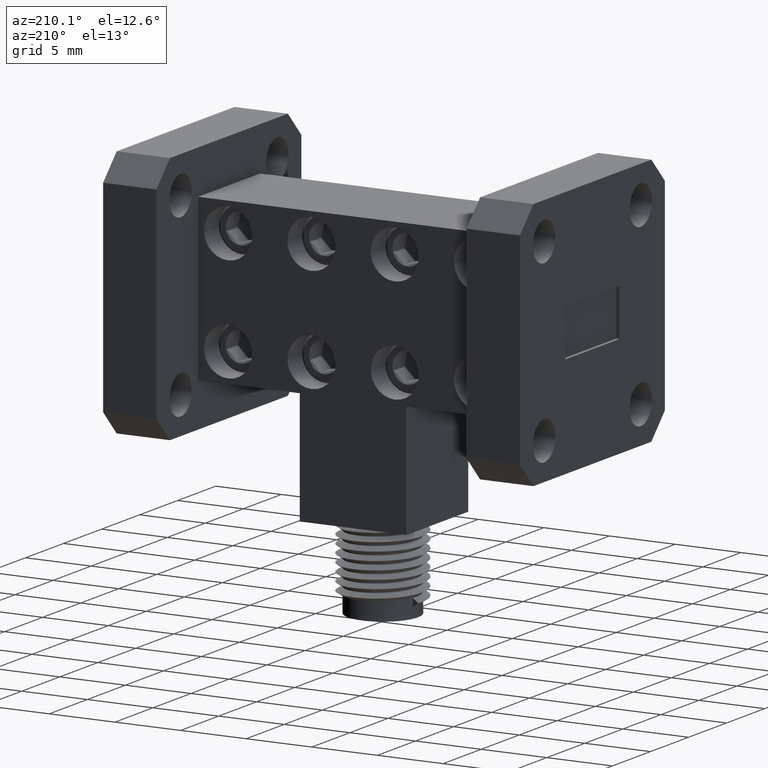
[diagram: clean part render]
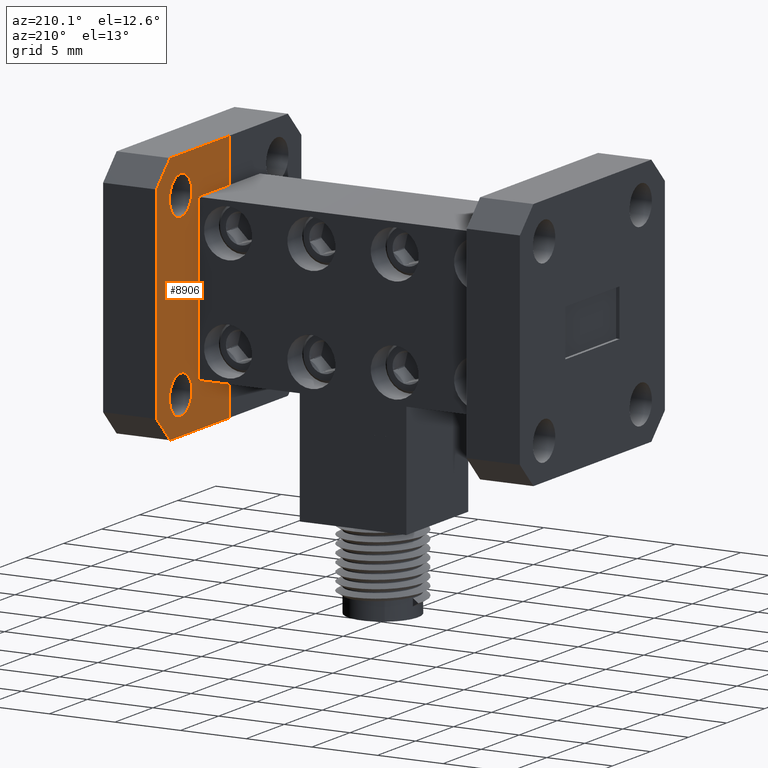
[diagram: same view with one face highlighted and labeled with its STEP entity id]
A machine part, auxiliary view. The second image highlights one B-rep face of the part: STEP entity #8906.
In plain terms, the highlighted planar face has unit normal (1, 0, 0).
Its self-contained STEP definition (entity closure, byte-faithful):
#18 = CARTESIAN_POINT ( 'NONE',  ( 0.4506356526792962300, 0.2073681026864123400, -0.2535334925322735900 ) ) ;
#160 = LINE ( 'NONE', #3188, #11014 ) ;
#216 = VERTEX_POINT ( 'NONE', #437 ) ;
#301 = VECTOR ( 'NONE', #4131, 39.37007874015748100 ) ;
#365 = DIRECTION ( 'NONE',  ( -7.850462293418889400E-017, 0.7071067811865489100, -0.7071067811865460200 ) ) ;
#437 = CARTESIAN_POINT ( 'NONE',  ( 0.4506356526792961200, 0.2073681026864123400, -0.1225334925322735900 ) ) ;
#518 = VERTEX_POINT ( 'NONE', #6326 ) ;
#731 = ORIENTED_EDGE ( 'NONE', *, *, #5749, .F. ) ;
#749 = CARTESIAN_POINT ( 'NONE',  ( 0.4506356526792963400, 0.3673681026864124000, 0.3654665074677268000 ) ) ;
#789 = EDGE_CURVE ( 'NONE', #8961, #873, #11409, .T. ) ;
#814 = CARTESIAN_POINT ( 'NONE',  ( 0.4506356526792961200, 0.4573681026864124300, 0.3284665074677265400 ) ) ;
#873 = VERTEX_POINT ( 'NONE', #11297 ) ;
#933 = DIRECTION ( 'NONE',  ( 0.0000000000000000000, 0.0000000000000000000, -1.000000000000000000 ) ) ;
#935 = DIRECTION ( 'NONE',  ( 7.850462293418891900E-017, -0.7071067811865491300, -0.7071067811865459100 ) ) ;
#1040 = CARTESIAN_POINT ( 'NONE',  ( 0.4506356526792963400, 0.3673681026864124000, -0.1225334925322735900 ) ) ;
#1269 = ORIENTED_EDGE ( 'NONE', *, *, #11650, .T. ) ;
#1325 = VECTOR ( 'NONE', #935, 39.37007874015748100 ) ;
#1359 = ORIENTED_EDGE ( 'NONE', *, *, #789, .F. ) ;
#1591 = CARTESIAN_POINT ( 'NONE',  ( 0.4506356526792960600, 0.5823681026864124800, -0.1835334925322737700 ) ) ;
#1614 = DIRECTION ( 'NONE',  ( 0.0000000000000000000, 0.0000000000000000000, -1.000000000000000000 ) ) ;
#1624 = EDGE_LOOP ( 'NONE', ( #11735, #3288, #1359, #4368, #7244, #6397, #8717, #3682, #10505, #4829 ) ) ;
#1803 = CARTESIAN_POINT ( 'NONE',  ( 0.4506356526792961200, 0.2073287326076722300, -0.2535334925322734700 ) ) ;
#1824 = VERTEX_POINT ( 'NONE', #814 ) ;
#1898 = LINE ( 'NONE', #8605, #1325 ) ;
#1926 = CARTESIAN_POINT ( 'NONE',  ( 0.4506356526792961200, 0.4573681026864124300, -0.2015334925322733700 ) ) ;
#1984 = LINE ( 'NONE', #6206, #8661 ) ;
#2047 = DIRECTION ( 'NONE',  ( -1.110223024625156300E-016, 1.000000000000000000, 0.0000000000000000000 ) ) ;
#2224 = FACE_OUTER_BOUND ( 'NONE', #1624, .T. ) ;
#2266 = AXIS2_PLACEMENT_3D ( 'NONE', #3317, #8129, #11022 ) ;
#2373 = CARTESIAN_POINT ( 'NONE',  ( 0.4506356526792961200, 0.5123681026864124200, 0.4964665074677264700 ) ) ;
#2595 = EDGE_CURVE ( 'NONE', #3270, #11865, #160, .T. ) ;
#2646 = CARTESIAN_POINT ( 'NONE',  ( 0.4506356526792961200, 0.4573681026864124300, -0.08553349253227338100 ) ) ;
#2929 = VERTEX_POINT ( 'NONE', #5031 ) ;
#2967 = EDGE_CURVE ( 'NONE', #518, #9276, #10564, .T. ) ;
#3029 = CIRCLE ( 'NONE', #12357, 0.05800000000000000300 ) ;
#3113 = CARTESIAN_POINT ( 'NONE',  ( 0.4506356526792961200, 0.2073287326076722300, -0.1225334925322735900 ) ) ;
#3188 = CARTESIAN_POINT ( 'NONE',  ( 0.4506356526792963400, 0.3673681026864124000, 0.3654665074677268000 ) ) ;
#3204 = AXIS2_PLACEMENT_3D ( 'NONE', #11367, #5690, #1614 ) ;
#3270 = VERTEX_POINT ( 'NONE', #749 ) ;
#3288 = ORIENTED_EDGE ( 'NONE', *, *, #10137, .T. ) ;
#3315 = DIRECTION ( 'NONE',  ( 0.0000000000000000000, 0.0000000000000000000, -1.000000000000000000 ) ) ;
#3317 = CARTESIAN_POINT ( 'NONE',  ( 0.4506356526792961200, 0.4573681026864124300, -0.1435334925322733800 ) ) ;
#3361 = EDGE_CURVE ( 'NONE', #8994, #8250, #3029, .T. ) ;
#3364 = VERTEX_POINT ( 'NONE', #2373 ) ;
#3429 = LINE ( 'NONE', #9722, #10811 ) ;
#3682 = ORIENTED_EDGE ( 'NONE', *, *, #11215, .T. ) ;
#4131 = DIRECTION ( 'NONE',  ( 0.0000000000000000000, 0.0000000000000000000, -1.000000000000000000 ) ) ;
#4255 = EDGE_CURVE ( 'NONE', #3364, #518, #1984, .T. ) ;
#4301 = VECTOR ( 'NONE', #12311, 39.37007874015748100 ) ;
#4354 = FACE_BOUND ( 'NONE', #8264, .T. ) ;
#4368 = ORIENTED_EDGE ( 'NONE', *, *, #4884, .F. ) ;
#4439 = AXIS2_PLACEMENT_3D ( 'NONE', #6567, #7509, #11433 ) ;
#4531 = DIRECTION ( 'NONE',  ( 0.0000000000000000000, 0.0000000000000000000, -1.000000000000000000 ) ) ;
#4815 = VECTOR ( 'NONE', #8973, 39.37007874015748100 ) ;
#4829 = ORIENTED_EDGE ( 'NONE', *, *, #4255, .T. ) ;
#4884 = EDGE_CURVE ( 'NONE', #216, #8961, #10064, .T. ) ;
#4967 = FACE_BOUND ( 'NONE', #5182, .T. ) ;
#5031 = CARTESIAN_POINT ( 'NONE',  ( 0.4506356526792962300, 0.2073681026864123400, 0.4964665074677264700 ) ) ;
#5104 = VECTOR ( 'NONE', #7680, 39.37007874015748100 ) ;
#5116 = CARTESIAN_POINT ( 'NONE',  ( 0.4506356526792960600, 0.5823681026864124800, 0.1214665074677265900 ) ) ;
#5182 = EDGE_LOOP ( 'NONE', ( #731, #10719 ) ) ;
#5211 = DIRECTION ( 'NONE',  ( -1.000000000000000000, 0.0000000000000000000, 0.0000000000000000000 ) ) ;
#5249 = DIRECTION ( 'NONE',  ( 0.0000000000000000000, 0.0000000000000000000, 1.000000000000000000 ) ) ;
#5363 = VECTOR ( 'NONE', #9836, 39.37007874015748100 ) ;
#5640 = CARTESIAN_POINT ( 'NONE',  ( 0.4506356526792961200, 0.4573681026864124300, 0.4444665074677267600 ) ) ;
#5690 = DIRECTION ( 'NONE',  ( 1.000000000000000000, 0.0000000000000000000, 0.0000000000000000000 ) ) ;
#5749 = EDGE_CURVE ( 'NONE', #8250, #8994, #9645, .T. ) ;
#5755 = CARTESIAN_POINT ( 'NONE',  ( 0.4506356526792961200, 0.2073681026864123400, -0.2535334925322734700 ) ) ;
#5768 = VERTEX_POINT ( 'NONE', #7249 ) ;
#6038 = VECTOR ( 'NONE', #933, 39.37007874015748100 ) ;
#6082 = CARTESIAN_POINT ( 'NONE',  ( 0.4506356526792961200, 0.2073287326076722300, 0.3654665074677268000 ) ) ;
#6206 = CARTESIAN_POINT ( 'NONE',  ( 0.4506356526792960600, 0.5823681026864124800, 0.4264665074677266900 ) ) ;
#6282 = VERTEX_POINT ( 'NONE', #5640 ) ;
#6326 = CARTESIAN_POINT ( 'NONE',  ( 0.4506356526792960600, 0.5823681026864124800, 0.4264665074677266900 ) ) ;
#6397 = ORIENTED_EDGE ( 'NONE', *, *, #2595, .F. ) ;
#6567 = CARTESIAN_POINT ( 'NONE',  ( 0.4506356526792961200, 0.4573681026864124300, 0.3864665074677266500 ) ) ;
#7244 = ORIENTED_EDGE ( 'NONE', *, *, #11429, .T. ) ;
#7249 = CARTESIAN_POINT ( 'NONE',  ( 0.4506356526792961200, 0.2073681026864123400, 0.3654665074677268000 ) ) ;
#7303 = EDGE_CURVE ( 'NONE', #5768, #3270, #8059, .T. ) ;
#7509 = DIRECTION ( 'NONE',  ( 1.000000000000000000, 0.0000000000000000000, 0.0000000000000000000 ) ) ;
#7662 = LINE ( 'NONE', #3113, #5363 ) ;
#7680 = DIRECTION ( 'NONE',  ( -1.110223024625156300E-016, 1.000000000000000000, 0.0000000000000000000 ) ) ;
#7832 = ORIENTED_EDGE ( 'NONE', *, *, #11144, .T. ) ;
#8059 = LINE ( 'NONE', #6082, #4815 ) ;
#8129 = DIRECTION ( 'NONE',  ( -1.000000000000000000, 0.0000000000000000000, 0.0000000000000000000 ) ) ;
#8182 = AXIS2_PLACEMENT_3D ( 'NONE', #10255, #12257, #4531 ) ;
#8236 = CARTESIAN_POINT ( 'NONE',  ( 0.4506356526792961200, 0.4573681026864124300, -0.1435334925322733800 ) ) ;
#8250 = VERTEX_POINT ( 'NONE', #2646 ) ;
#8264 = EDGE_LOOP ( 'NONE', ( #7832, #1269 ) ) ;
#8605 = CARTESIAN_POINT ( 'NONE',  ( 0.4506356526792960600, 0.5823681026864124800, -0.1835334925322737500 ) ) ;
#8661 = VECTOR ( 'NONE', #365, 39.37007874015748900 ) ;
#8717 = ORIENTED_EDGE ( 'NONE', *, *, #7303, .F. ) ;
#8906 = ADVANCED_FACE ( 'NONE', ( #2224, #4354, #4967 ), #9453, .F. ) ;
#8961 = VERTEX_POINT ( 'NONE', #18 ) ;
#8973 = DIRECTION ( 'NONE',  ( -1.110223024625156300E-016, 1.000000000000000000, 0.0000000000000000000 ) ) ;
#8994 = VERTEX_POINT ( 'NONE', #1926 ) ;
#9276 = VERTEX_POINT ( 'NONE', #1591 ) ;
#9453 = PLANE ( 'NONE',  #3204 ) ;
#9645 = CIRCLE ( 'NONE', #2266, 0.05800000000000000300 ) ;
#9722 = CARTESIAN_POINT ( 'NONE',  ( 0.4506356526792961200, 0.2073287326076722300, 0.4964665074677264700 ) ) ;
#9836 = DIRECTION ( 'NONE',  ( -1.110223024625156300E-016, 1.000000000000000000, 0.0000000000000000000 ) ) ;
#10064 = LINE ( 'NONE', #5755, #6038 ) ;
#10137 = EDGE_CURVE ( 'NONE', #9276, #873, #1898, .T. ) ;
#10255 = CARTESIAN_POINT ( 'NONE',  ( 0.4506356526792961200, 0.4573681026864124300, 0.3864665074677266500 ) ) ;
#10309 = EDGE_CURVE ( 'NONE', #2929, #3364, #3429, .T. ) ;
#10505 = ORIENTED_EDGE ( 'NONE', *, *, #10309, .T. ) ;
#10564 = LINE ( 'NONE', #5116, #301 ) ;
#10613 = CIRCLE ( 'NONE', #8182, 0.05800000000000010700 ) ;
#10719 = ORIENTED_EDGE ( 'NONE', *, *, #3361, .F. ) ;
#10811 = VECTOR ( 'NONE', #2047, 39.37007874015748100 ) ;
#11014 = VECTOR ( 'NONE', #3315, 39.37007874015748100 ) ;
#11022 = DIRECTION ( 'NONE',  ( 0.0000000000000000000, 0.0000000000000000000, 1.000000000000000000 ) ) ;
#11144 = EDGE_CURVE ( 'NONE', #6282, #1824, #11973, .T. ) ;
#11215 = EDGE_CURVE ( 'NONE', #5768, #2929, #11223, .T. ) ;
#11223 = LINE ( 'NONE', #11353, #4301 ) ;
#11297 = CARTESIAN_POINT ( 'NONE',  ( 0.4506356526792961200, 0.5123681026864124200, -0.2535334925322734700 ) ) ;
#11353 = CARTESIAN_POINT ( 'NONE',  ( 0.4506356526792961200, 0.2073681026864123400, 0.1214665074677265900 ) ) ;
#11367 = CARTESIAN_POINT ( 'NONE',  ( 0.4506356526792961200, 0.2073287326076722300, 0.1214665074677265900 ) ) ;
#11409 = LINE ( 'NONE', #1803, #5104 ) ;
#11429 = EDGE_CURVE ( 'NONE', #216, #11865, #7662, .T. ) ;
#11433 = DIRECTION ( 'NONE',  ( 0.0000000000000000000, 0.0000000000000000000, -1.000000000000000000 ) ) ;
#11650 = EDGE_CURVE ( 'NONE', #1824, #6282, #10613, .T. ) ;
#11735 = ORIENTED_EDGE ( 'NONE', *, *, #2967, .T. ) ;
#11865 = VERTEX_POINT ( 'NONE', #1040 ) ;
#11973 = CIRCLE ( 'NONE', #4439, 0.05800000000000010700 ) ;
#12257 = DIRECTION ( 'NONE',  ( 1.000000000000000000, 0.0000000000000000000, 0.0000000000000000000 ) ) ;
#12311 = DIRECTION ( 'NONE',  ( -0.0000000000000000000, 0.0000000000000000000, 1.000000000000000000 ) ) ;
#12357 = AXIS2_PLACEMENT_3D ( 'NONE', #8236, #5211, #5249 ) ;